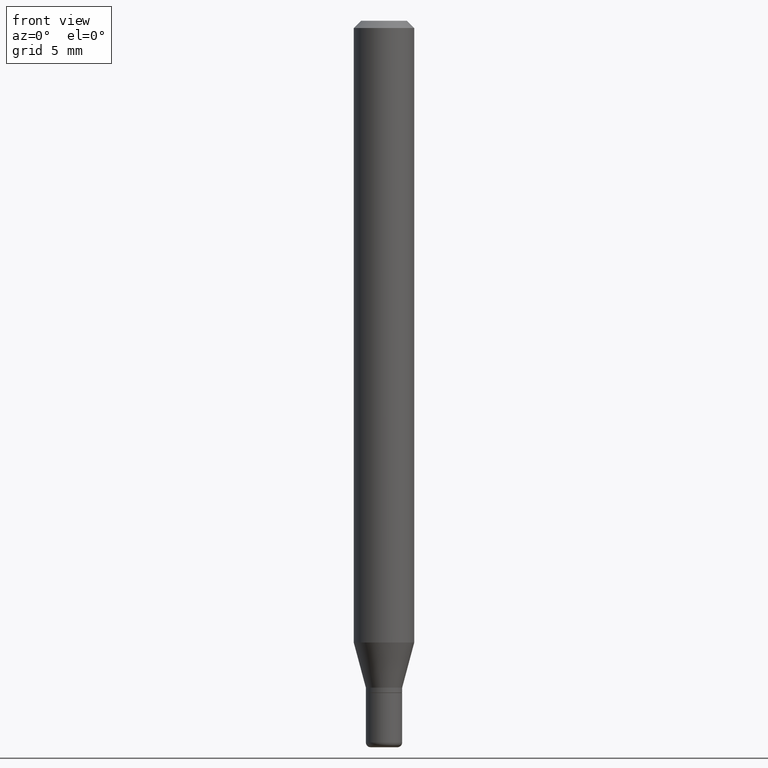
[diagram: clean part render]
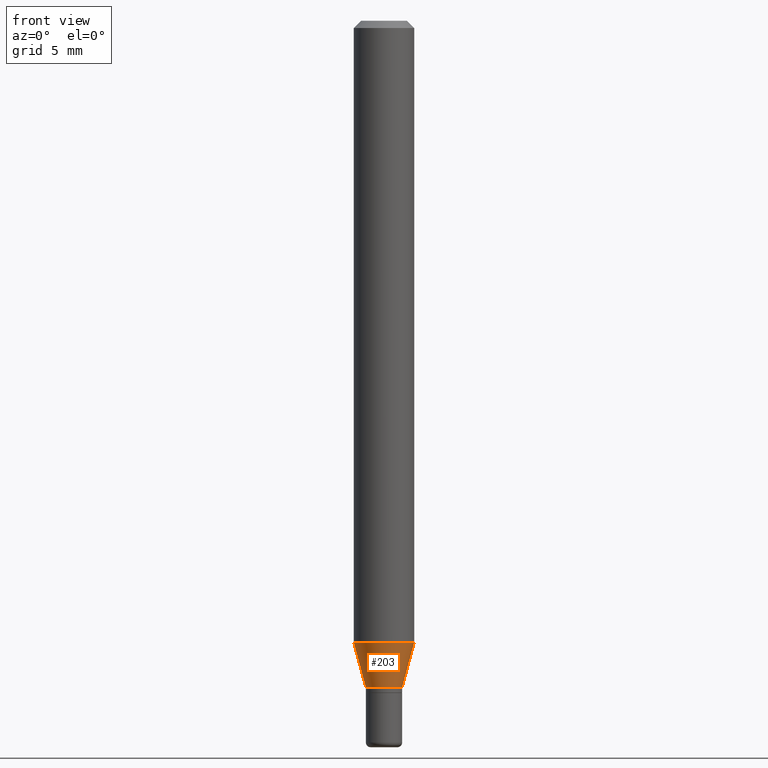
[diagram: same view with one face highlighted and labeled with its STEP entity id]
A machine part, front view. The second image highlights one B-rep face of the part: STEP entity #203.
In plain terms, the highlighted conical surface has half-angle 15 deg.
Its self-contained STEP definition (entity closure, byte-faithful):
#34 = EDGE_LOOP ( 'NONE', ( #506, #75, #217, #116 ) ) ;
#58 = DIRECTION ( 'NONE',  ( -2.445468806185136597E-29, 3.491481338843145583E-15, 1.000000000000000000 ) ) ;
#68 = CARTESIAN_POINT ( 'NONE',  ( -0.03749999999999997780, -4.289618613828946171E-15, -1.377000000000000002 ) ) ;
#73 = VERTEX_POINT ( 'NONE', #167 ) ;
#75 = ORIENTED_EDGE ( 'NONE', *, *, #229, .T. ) ;
#78 = VECTOR ( 'NONE', #464, 39.37007874015748143 ) ;
#116 = ORIENTED_EDGE ( 'NONE', *, *, #132, .F. ) ;
#122 = EDGE_CURVE ( 'NONE', #213, #388, #386, .T. ) ;
#124 = CONICAL_SURFACE ( 'NONE', #469, 0.03749999999999997780, 0.2617993877991492413 ) ;
#125 = CIRCLE ( 'NONE', #171, 0.03749999999999997780 ) ;
#132 = EDGE_CURVE ( 'NONE', #73, #388, #468, .T. ) ;
#134 = AXIS2_PLACEMENT_3D ( 'NONE', #348, #260, #266 ) ;
#153 = VERTEX_POINT ( 'NONE', #68 ) ;
#167 = CARTESIAN_POINT ( 'NONE',  ( -0.06250000000000000000, -4.037920949980918021E-15, -1.283698729810778039 ) ) ;
#171 = AXIS2_PLACEMENT_3D ( 'NONE', #422, #58, #305 ) ;
#187 = CARTESIAN_POINT ( 'NONE',  ( 0.03749999999999997780, -5.069630904000246734E-15, -1.377000000000000002 ) ) ;
#190 = FACE_OUTER_BOUND ( 'NONE', #34, .T. ) ;
#203 = ADVANCED_FACE ( 'NONE', ( #190 ), #124, .T. ) ;
#213 = VERTEX_POINT ( 'NONE', #294 ) ;
#217 = ORIENTED_EDGE ( 'NONE', *, *, #122, .T. ) ;
#228 = DIRECTION ( 'NONE',  ( -0.2588190451025205729, 5.211531920934545520E-15, 0.9659258262890684232 ) ) ;
#229 = EDGE_CURVE ( 'NONE', #153, #213, #125, .T. ) ;
#259 = CARTESIAN_POINT ( 'NONE',  ( 0.06250000000000000000, -4.918445327186372307E-15, -1.283698729810778039 ) ) ;
#260 = DIRECTION ( 'NONE',  ( -2.445468806185136597E-29, 3.491481338843145583E-15, 1.000000000000000000 ) ) ;
#262 = EDGE_CURVE ( 'NONE', #153, #73, #502, .T. ) ;
#266 = DIRECTION ( 'NONE',  ( 1.000000000000000000, -6.982962677686262766E-15, 0.000000000000000000 ) ) ;
#273 = CARTESIAN_POINT ( 'NONE',  ( 3.367410546116933466E-29, -4.807769803587011733E-15, -1.377000000000000002 ) ) ;
#294 = CARTESIAN_POINT ( 'NONE',  ( 0.03749999999999997780, -5.069630904000246734E-15, -1.377000000000000002 ) ) ;
#305 = DIRECTION ( 'NONE',  ( 1.000000000000000000, -6.982962677686272233E-15, 0.000000000000000000 ) ) ;
#348 = CARTESIAN_POINT ( 'NONE',  ( 3.139245200291739433E-29, -4.482010159830980638E-15, -1.283698729810778039 ) ) ;
#386 = LINE ( 'NONE', #187, #78 ) ;
#388 = VERTEX_POINT ( 'NONE', #259 ) ;
#410 = DIRECTION ( 'NONE',  ( 1.000000000000000000, -6.982962677686272233E-15, 0.000000000000000000 ) ) ;
#422 = CARTESIAN_POINT ( 'NONE',  ( 3.367410546116933466E-29, -4.807769803587011733E-15, -1.377000000000000002 ) ) ;
#455 = DIRECTION ( 'NONE',  ( -2.445468806185136597E-29, 3.491481338843145583E-15, 1.000000000000000000 ) ) ;
#464 = DIRECTION ( 'NONE',  ( 0.2588190451025205729, 1.565188264969628081E-15, 0.9659258262890684232 ) ) ;
#465 = CARTESIAN_POINT ( 'NONE',  ( -0.03749999999999997780, -4.541316277676974321E-15, -1.377000000000000002 ) ) ;
#468 = CIRCLE ( 'NONE', #134, 0.06250000000000000000 ) ;
#469 = AXIS2_PLACEMENT_3D ( 'NONE', #273, #455, #410 ) ;
#497 = VECTOR ( 'NONE', #228, 39.37007874015748143 ) ;
#502 = LINE ( 'NONE', #465, #497 ) ;
#506 = ORIENTED_EDGE ( 'NONE', *, *, #262, .F. ) ;